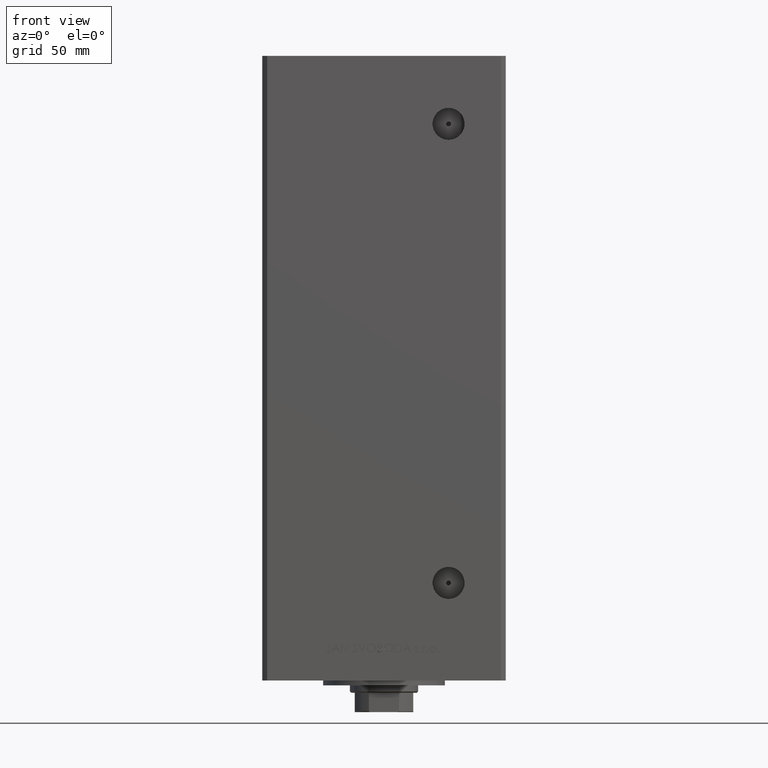
[diagram: clean part render]
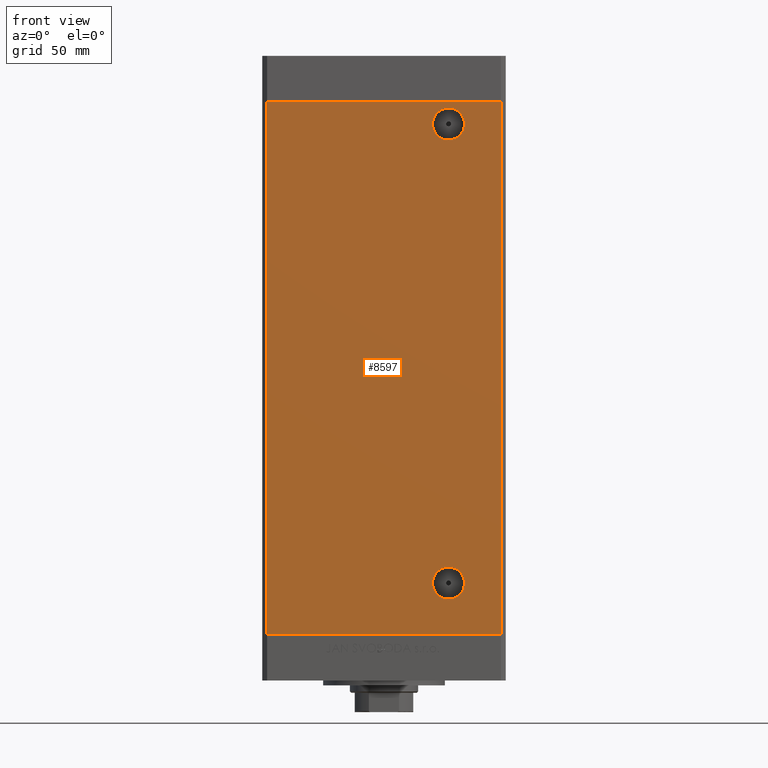
[diagram: same view with one face highlighted and labeled with its STEP entity id]
A machine part, front view. The second image highlights one B-rep face of the part: STEP entity #8597.
In plain terms, the highlighted planar face has unit normal (0, 1, 0).
Its self-contained STEP definition (entity closure, byte-faithful):
#306 = EDGE_CURVE ( 'NONE', #44462, #3927, #17177, .T. ) ;
#376 = CARTESIAN_POINT ( 'NONE',  ( 26.49999999999998934, -43.50000000000000000, 20.99999999999998934 ) ) ;
#1899 = CARTESIAN_POINT ( 'NONE',  ( 26.49999999999998934, -43.50000000000000000, 14.41999999999999460 ) ) ;
#3428 = DIRECTION ( 'NONE',  ( -0.000000000000000000, -0.000000000000000000, -1.000000000000000000 ) ) ;
#3501 = EDGE_CURVE ( 'NONE', #26159, #9556, #13203, .T. ) ;
#3898 = CARTESIAN_POINT ( 'NONE',  ( 26.49999999999996803, -43.50000000000000000, 209.5000000000000000 ) ) ;
#3927 = VERTEX_POINT ( 'NONE', #20313 ) ;
#4247 = AXIS2_PLACEMENT_3D ( 'NONE', #3898, #35032, #15285 ) ;
#4921 = DIRECTION ( 'NONE',  ( 0.000000000000000000, -1.000000000000000000, 0.000000000000000000 ) ) ;
#6101 = CARTESIAN_POINT ( 'NONE',  ( -47.99999999999998579, -43.50000000000000000, 218.5000000000000000 ) ) ;
#6237 = ORIENTED_EDGE ( 'NONE', *, *, #28756, .T. ) ;
#7352 = DIRECTION ( 'NONE',  ( 0.000000000000000000, 1.000000000000000000, 0.000000000000000000 ) ) ;
#8004 = CARTESIAN_POINT ( 'NONE',  ( 47.99999999999998579, -43.50000000000000000, 0.000000000000000000 ) ) ;
#8344 = FACE_BOUND ( 'NONE', #10355, .T. ) ;
#8597 = ADVANCED_FACE ( 'NONE', ( #27838, #15697, #8344 ), #19760, .F. ) ;
#9098 = CARTESIAN_POINT ( 'NONE',  ( 47.99999999999998579, -43.50000000000000000, 218.5000000000000000 ) ) ;
#9431 = VERTEX_POINT ( 'NONE', #9098 ) ;
#9556 = VERTEX_POINT ( 'NONE', #29820 ) ;
#10317 = VERTEX_POINT ( 'NONE', #6101 ) ;
#10355 = EDGE_LOOP ( 'NONE', ( #18656, #6237 ) ) ;
#10868 = EDGE_LOOP ( 'NONE', ( #18698, #32680 ) ) ;
#11889 = VECTOR ( 'NONE', #3428, 1000.000000000000000 ) ;
#12571 = CIRCLE ( 'NONE', #33560, 6.580000000000002736 ) ;
#13203 = CIRCLE ( 'NONE', #26145, 6.579999999999995630 ) ;
#14180 = CIRCLE ( 'NONE', #25483, 6.579999999999995630 ) ;
#14929 = EDGE_CURVE ( 'NONE', #41147, #44039, #20031, .T. ) ;
#15285 = DIRECTION ( 'NONE',  ( 0.000000000000000000, 0.000000000000000000, -1.000000000000000000 ) ) ;
#15697 = FACE_OUTER_BOUND ( 'NONE', #24438, .T. ) ;
#15828 = ORIENTED_EDGE ( 'NONE', *, *, #14929, .T. ) ;
#17177 = CIRCLE ( 'NONE', #4247, 6.580000000000002736 ) ;
#18656 = ORIENTED_EDGE ( 'NONE', *, *, #306, .T. ) ;
#18698 = ORIENTED_EDGE ( 'NONE', *, *, #3501, .F. ) ;
#19760 = PLANE ( 'NONE',  #40068 ) ;
#20031 = LINE ( 'NONE', #32173, #33823 ) ;
#20281 = DIRECTION ( 'NONE',  ( 1.000000000000000000, 0.000000000000000000, 0.000000000000000000 ) ) ;
#20313 = CARTESIAN_POINT ( 'NONE',  ( 26.49999999999996803, -43.50000000000000000, 216.0799999999999841 ) ) ;
#20620 = DIRECTION ( 'NONE',  ( 0.000000000000000000, 0.000000000000000000, -1.000000000000000000 ) ) ;
#21736 = CARTESIAN_POINT ( 'NONE',  ( 26.49999999999998934, -43.50000000000000000, 20.99999999999998934 ) ) ;
#22157 = LINE ( 'NONE', #30250, #11889 ) ;
#24438 = EDGE_LOOP ( 'NONE', ( #15828, #32863, #49235, #35001 ) ) ;
#24557 = DIRECTION ( 'NONE',  ( -0.000000000000000000, -0.000000000000000000, -1.000000000000000000 ) ) ;
#25483 = AXIS2_PLACEMENT_3D ( 'NONE', #21736, #34404, #45811 ) ;
#25963 = LINE ( 'NONE', #37626, #26807 ) ;
#25994 = VECTOR ( 'NONE', #24557, 1000.000000000000000 ) ;
#26145 = AXIS2_PLACEMENT_3D ( 'NONE', #376, #4921, #20620 ) ;
#26159 = VERTEX_POINT ( 'NONE', #1899 ) ;
#26807 = VECTOR ( 'NONE', #41178, 1000.000000000000000 ) ;
#27170 = CARTESIAN_POINT ( 'NONE',  ( 26.49999999999996803, -43.50000000000000000, 209.5000000000000000 ) ) ;
#27838 = FACE_BOUND ( 'NONE', #10868, .T. ) ;
#28756 = EDGE_CURVE ( 'NONE', #3927, #44462, #12571, .T. ) ;
#29315 = EDGE_CURVE ( 'NONE', #9556, #26159, #14180, .T. ) ;
#29820 = CARTESIAN_POINT ( 'NONE',  ( 26.49999999999998934, -43.50000000000000000, 27.57999999999998764 ) ) ;
#30250 = CARTESIAN_POINT ( 'NONE',  ( -47.99999999999998579, -43.50000000000000000, 218.5000000000000000 ) ) ;
#31145 = DIRECTION ( 'NONE',  ( 0.000000000000000000, -0.000000000000000000, 1.000000000000000000 ) ) ;
#31399 = CARTESIAN_POINT ( 'NONE',  ( -47.99999999999998579, -43.50000000000000000, 218.5000000000000000 ) ) ;
#32136 = EDGE_CURVE ( 'NONE', #10317, #41147, #22157, .T. ) ;
#32173 = CARTESIAN_POINT ( 'NONE',  ( -47.99999999999998579, -43.50000000000000000, 0.000000000000000000 ) ) ;
#32649 = CARTESIAN_POINT ( 'NONE',  ( 47.99999999999998579, -43.50000000000000000, 218.5000000000000000 ) ) ;
#32680 = ORIENTED_EDGE ( 'NONE', *, *, #29315, .F. ) ;
#32863 = ORIENTED_EDGE ( 'NONE', *, *, #48005, .F. ) ;
#33560 = AXIS2_PLACEMENT_3D ( 'NONE', #27170, #42631, #35021 ) ;
#33823 = VECTOR ( 'NONE', #20281, 1000.000000000000000 ) ;
#34404 = DIRECTION ( 'NONE',  ( 0.000000000000000000, -1.000000000000000000, 0.000000000000000000 ) ) ;
#35001 = ORIENTED_EDGE ( 'NONE', *, *, #32136, .T. ) ;
#35021 = DIRECTION ( 'NONE',  ( 0.000000000000000000, 0.000000000000000000, -1.000000000000000000 ) ) ;
#35032 = DIRECTION ( 'NONE',  ( -0.000000000000000000, 1.000000000000000000, -0.000000000000000000 ) ) ;
#37626 = CARTESIAN_POINT ( 'NONE',  ( -47.99999999999998579, -43.50000000000000000, 218.5000000000000000 ) ) ;
#38471 = CARTESIAN_POINT ( 'NONE',  ( -47.99999999999998579, -43.50000000000000000, 0.000000000000000000 ) ) ;
#40068 = AXIS2_PLACEMENT_3D ( 'NONE', #31399, #7352, #31145 ) ;
#40381 = CARTESIAN_POINT ( 'NONE',  ( 26.49999999999996803, -43.50000000000000000, 202.9199999999999875 ) ) ;
#41147 = VERTEX_POINT ( 'NONE', #38471 ) ;
#41178 = DIRECTION ( 'NONE',  ( 1.000000000000000000, 0.000000000000000000, 0.000000000000000000 ) ) ;
#42631 = DIRECTION ( 'NONE',  ( -0.000000000000000000, 1.000000000000000000, -0.000000000000000000 ) ) ;
#44039 = VERTEX_POINT ( 'NONE', #8004 ) ;
#44065 = LINE ( 'NONE', #32649, #25994 ) ;
#44462 = VERTEX_POINT ( 'NONE', #40381 ) ;
#45811 = DIRECTION ( 'NONE',  ( 0.000000000000000000, 0.000000000000000000, -1.000000000000000000 ) ) ;
#47542 = EDGE_CURVE ( 'NONE', #10317, #9431, #25963, .T. ) ;
#48005 = EDGE_CURVE ( 'NONE', #9431, #44039, #44065, .T. ) ;
#49235 = ORIENTED_EDGE ( 'NONE', *, *, #47542, .F. ) ;